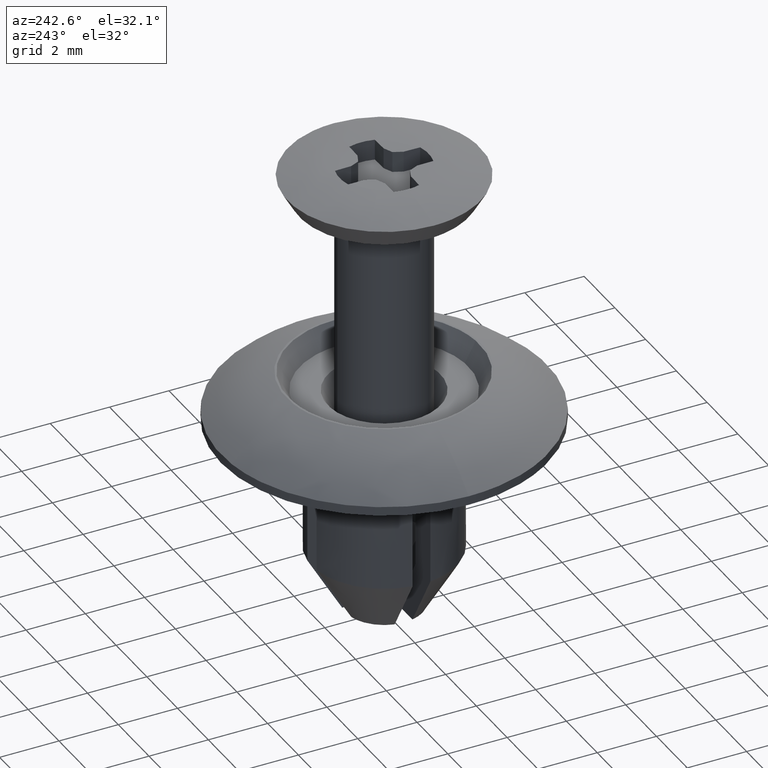
[diagram: clean part render]
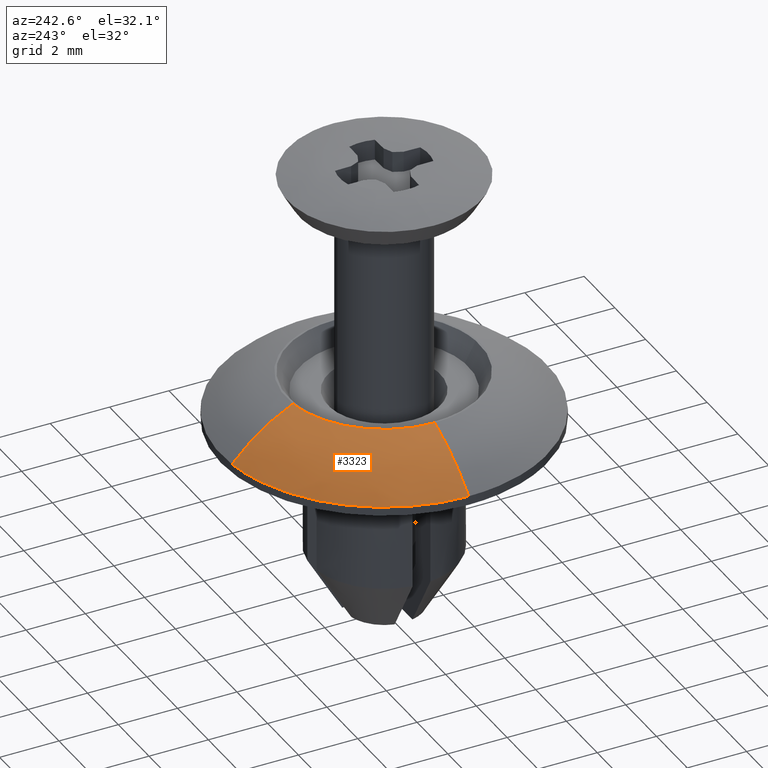
[diagram: same view with one face highlighted and labeled with its STEP entity id]
A machine part, auxiliary view. The second image highlights one B-rep face of the part: STEP entity #3323.
In plain terms, the highlighted face is a freeform B-spline surface patch.
Its self-contained STEP definition (entity closure, byte-faithful):
#2877=CARTESIAN_POINT('',(-5.500000312432341,0.0,-8.613397763661704));
#2878=VERTEX_POINT('',#2877);
#2892=CARTESIAN_POINT('',(-0.635049945553361,5.463210421845730,-8.613393615440463));
#2893=VERTEX_POINT('',#2892);
#2894=CARTESIAN_POINT('',(-5.500000312432341,0.0,-8.613397763661704));
#2895=CARTESIAN_POINT('',(-5.499999928158001,4.897704973493306,-8.613395689551084));
#2896=CARTESIAN_POINT('',(-0.635049945553361,5.463210421845730,-8.613393615440463));
#2904=(BOUNDED_CURVE()B_SPLINE_CURVE(2,(#2894,#2895,#2896),.UNSPECIFIED.,.F.,.U.)B_SPLINE_CURVE_WITH_KNOTS((3,3),(0.0,0.230000088541485),.UNSPECIFIED.)CURVE()GEOMETRIC_REPRESENTATION_ITEM()RATIONAL_B_SPLINE_CURVE((1.0,0.730538134958822,0.956886292461841))REPRESENTATION_ITEM(''));
#2905=EDGE_CURVE('',#2878,#2893,#2904,.T.);
#3219=CARTESIAN_POINT('',(-0.380082893211685,3.269763836665519,-7.248211268588783));
#3220=VERTEX_POINT('',#3219);
#3238=CARTESIAN_POINT('',(-3.291780275460875,0.0,-7.248211206521248));
#3239=VERTEX_POINT('',#3238);
#3255=CARTESIAN_POINT('',(-5.500000312432341,0.0,-8.613397763661702));
#3256=CARTESIAN_POINT('',(-4.547148645604450,0.0,-7.686140931934091));
#3257=CARTESIAN_POINT('',(-3.291780275460875,0.0,-7.248211206521248));
#3265=(BOUNDED_CURVE()B_SPLINE_CURVE(2,(#3255,#3256,#3257),.UNSPECIFIED.,.F.,.U.)B_SPLINE_CURVE_WITH_KNOTS((3,3),(0.724840561658866,0.844322001076325),.UNSPECIFIED.)CURVE()GEOMETRIC_REPRESENTATION_ITEM()RATIONAL_B_SPLINE_CURVE((0.950115827110593,0.909718608074850,0.913810231976363))REPRESENTATION_ITEM(''));
#3266=EDGE_CURVE('',#2878,#3239,#3265,.T.);
#3272=CARTESIAN_POINT('',(-0.635049945553361,5.463210421845730,-8.613393615440463));
#3273=CARTESIAN_POINT('',(-0.525031235488937,4.516732839194072,-7.686139966810842));
#3274=CARTESIAN_POINT('',(-0.380082893211685,3.269763836665519,-7.248211268588784));
#3282=(BOUNDED_CURVE()B_SPLINE_CURVE(2,(#3272,#3273,#3274),.UNSPECIFIED.,.F.,.U.)B_SPLINE_CURVE_WITH_KNOTS((3,3),(0.724840861244385,0.844321984066128),.UNSPECIFIED.)CURVE()GEOMETRIC_REPRESENTATION_ITEM()RATIONAL_B_SPLINE_CURVE((0.909152451787290,0.870497122846750,0.874412324523974))REPRESENTATION_ITEM(''));
#3283=EDGE_CURVE('',#2893,#3220,#3282,.T.);
#3288=CARTESIAN_POINT('',(-5.590003673990861,0.0,-8.702855991262918));
#3289=CARTESIAN_POINT('',(-4.561127080890661,0.0,-7.658350940774447));
#3290=CARTESIAN_POINT('',(-3.166494528221253,0.0,-7.206048069503207));
#3291=CARTESIAN_POINT('',(-5.590003673990862,4.977851879280988,-8.702855991262918));
#3292=CARTESIAN_POINT('',(-4.561127080890661,4.061645811950158,-7.658350940774448));
#3293=CARTESIAN_POINT('',(-3.166494528221254,2.819737098094955,-7.206048069503208));
#3294=CARTESIAN_POINT('',(-0.645445466152866,5.552615710226490,-8.702855991262918));
#3295=CARTESIAN_POINT('',(-0.526647023257886,4.530620615426521,-7.658350940774448));
#3296=CARTESIAN_POINT('',(-0.365616850369463,3.145315869031448,-7.206048069503208));
#3304=(BOUNDED_SURFACE()B_SPLINE_SURFACE(2,2,((#3288,#3291,#3294),(#3289,#3292,#3295),(#3290,#3293,#3296)),.UNSPECIFIED.,.F.,.F.,.U.)B_SPLINE_SURFACE_WITH_KNOTS((3,3),(3,3),(0.0,2.910016244078221),(0.0,8.511529410103719),.UNSPECIFIED.)GEOMETRIC_REPRESENTATION_ITEM()RATIONAL_B_SPLINE_SURFACE(((0.954262493023061,0.697125240902545,0.913120532683778),(0.907385405208872,0.662879735735775,0.868264498093176),(0.914329981000881,0.667953013903330,0.874909666265273)))REPRESENTATION_ITEM('')SURFACE());
#3305=CARTESIAN_POINT('',(-3.291780275460875,0.0,-7.248211206521248));
#3306=CARTESIAN_POINT('',(-3.291780453374810,2.931303174588282,-7.248211268585752));
#3307=CARTESIAN_POINT('',(-0.380082893211685,3.269763836665519,-7.248211268588783));
#3315=(BOUNDED_CURVE()B_SPLINE_CURVE(2,(#3305,#3306,#3307),.UNSPECIFIED.,.F.,.U.)B_SPLINE_CURVE_WITH_KNOTS((3,3),(0.0,0.229999999995051),.UNSPECIFIED.)CURVE()GEOMETRIC_REPRESENTATION_ITEM()RATIONAL_B_SPLINE_CURVE((1.0,0.730538238697422,0.956886118180919))REPRESENTATION_ITEM(''));
#3316=EDGE_CURVE('',#3239,#3220,#3315,.T.);
#3317=ORIENTED_EDGE('',*,*,#3316,.T.);
#3318=ORIENTED_EDGE('',*,*,#3283,.F.);
#3319=ORIENTED_EDGE('',*,*,#2905,.F.);
#3320=ORIENTED_EDGE('',*,*,#3266,.T.);
#3321=EDGE_LOOP('',(#3317,#3318,#3319,#3320));
#3322=FACE_OUTER_BOUND('',#3321,.T.);
#3323=ADVANCED_FACE('',(#3322),#3304,.T.);